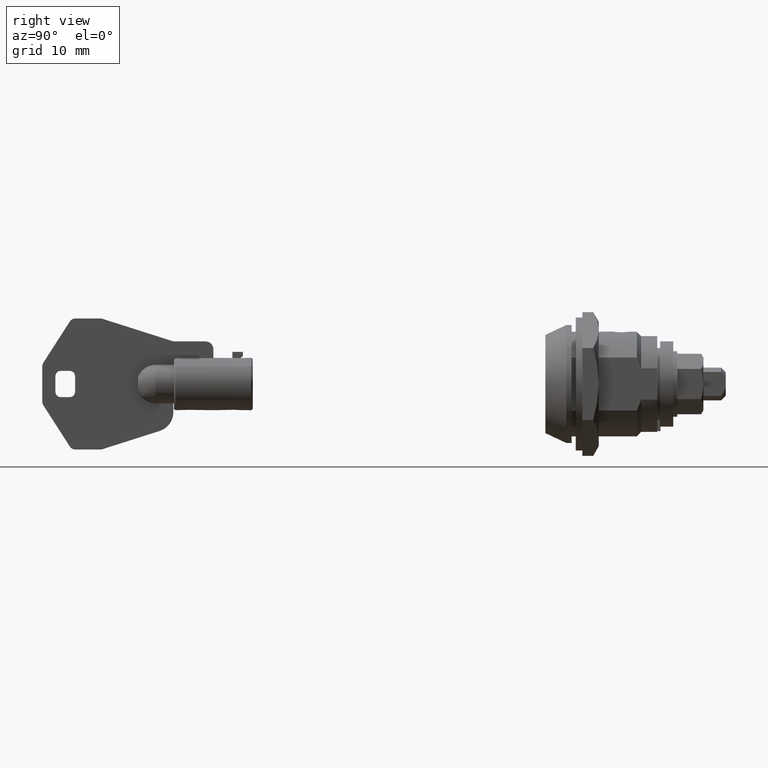
[diagram: clean part render]
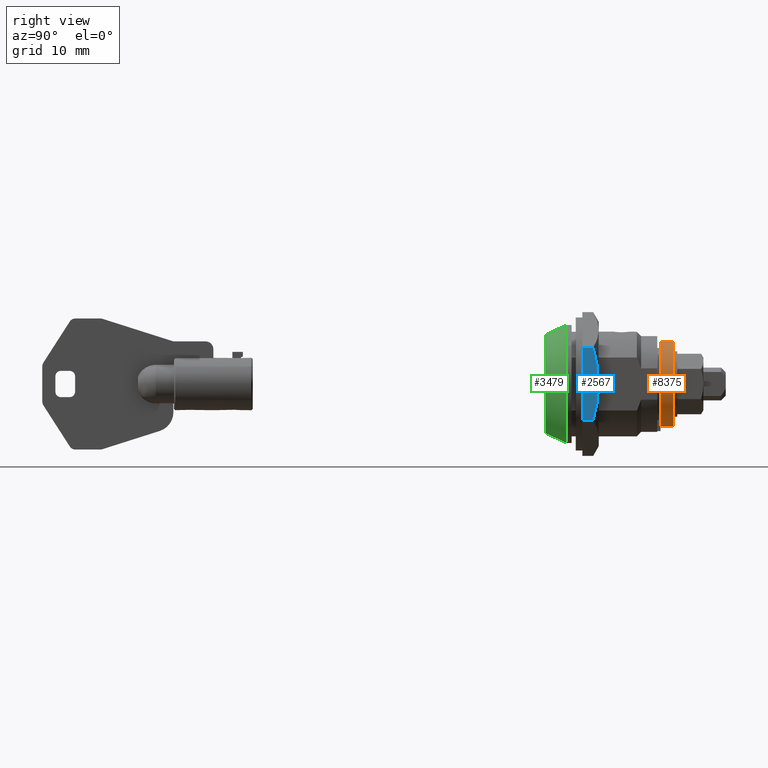
[diagram: same view with three faces highlighted in distinct colors, each labeled with its STEP entity id]
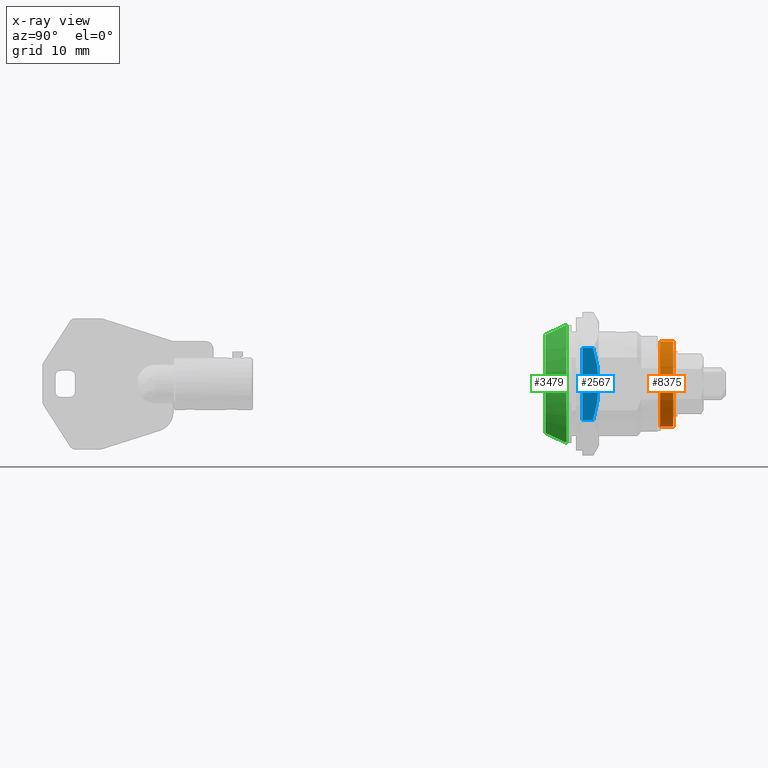
[diagram: x-ray of the same camera — body ghosted, the three highlighted faces saturated]
A machine part, right view with three faces highlighted in distinct colors.
The next image is the same camera in x-ray (body ghosted, the three faces saturated) — at least one of them is partly hidden behind the body in this view.
Their STEP definitions:

[orange] entity #8375 — the highlighted face is a freeform B-spline surface patch.
#7965=CARTESIAN_POINT('',(17.499800000000000,0.0,-6.500000000000000));
#7966=VERTEX_POINT('',#7965);
#7972=CARTESIAN_POINT('',(17.499800000000000,-6.499999999999924,-0.000000993931555));
#7973=VERTEX_POINT('',#7972);
#7974=CARTESIAN_POINT('',(17.499800000000000,-6.499999999999924,-0.000000993931555));
#7975=CARTESIAN_POINT('',(17.499799999999990,-6.500050616228368,-0.425427042327566));
#7976=CARTESIAN_POINT('',(17.499800000000040,-6.426642529057130,-1.169896962440129));
#7977=CARTESIAN_POINT('',(17.499799999999951,-6.149291729741768,-2.172008203176689));
#7978=CARTESIAN_POINT('',(17.499800000000061,-5.702088948834822,-3.198104650409914));
#7979=CARTESIAN_POINT('',(17.499799999999951,-5.011679629483419,-4.217758870349840));
#7980=CARTESIAN_POINT('',(17.499800000000050,-4.063475574829587,-5.120432628756674));
#7981=CARTESIAN_POINT('',(17.499799999999929,-3.191045881654870,-5.687978824075811));
#7982=CARTESIAN_POINT('',(17.499800000000061,-2.273625035879995,-6.115025978798578));
#7983=CARTESIAN_POINT('',(17.499799999999951,-1.249666720935796,-6.418800240558206));
#7984=CARTESIAN_POINT('',(17.499800000000029,-0.425423716752507,-6.500046548348649));
#7985=CARTESIAN_POINT('',(17.499800000000000,0.0,-6.500000000000000));
#7986=B_SPLINE_CURVE_WITH_KNOTS('',3,(#7974,#7975,#7976,#7977,#7978,#7979,#7980,#7981,#7982,#7983,#7984,#7985),.UNSPECIFIED.,.F.,.U.,(4,1,1,1,1,1,1,1,1,4),(0.000000097034606,1.276275196461892,2.233488183033234,3.110936171743759,4.626547442655870,5.902766694716857,7.019536804559957,7.737448089097114,8.933968644938119,10.210239628492021),.UNSPECIFIED.);
#7987=EDGE_CURVE('',#7973,#7966,#7986,.T.);
#7989=CARTESIAN_POINT('',(17.499800000000000,3.979971E-016,6.500000000000000));
#7990=VERTEX_POINT('',#7989);
#7991=CARTESIAN_POINT('',(17.499800000000000,3.979971E-016,6.500000000000000));
#7992=CARTESIAN_POINT('',(17.499800000000000,-0.372237101755605,6.500022234706312));
#7993=CARTESIAN_POINT('',(17.499800000000000,-1.196504315342978,6.429042349372064));
#7994=CARTESIAN_POINT('',(17.499800000000040,-2.251060215257179,6.130233380089554));
#7995=CARTESIAN_POINT('',(17.499799999999990,-3.310684022483225,5.629072978366904));
#7996=CARTESIAN_POINT('',(17.499800000000000,-4.298511773627595,4.942444478894545));
#7997=CARTESIAN_POINT('',(17.499800000000040,-5.154220962933634,4.021250485101271));
#7998=CARTESIAN_POINT('',(17.499800000000079,-5.810306308076611,2.985080447231671));
#7999=CARTESIAN_POINT('',(17.499799999999940,-6.342078995919162,1.701563344428691));
#8000=CARTESIAN_POINT('',(17.499799999999979,-6.500273560504184,0.638164895137527));
#8001=CARTESIAN_POINT('',(17.499800000000000,-6.499999999999924,-0.000000993931555));
#8002=B_SPLINE_CURVE_WITH_KNOTS('',3,(#7991,#7992,#7993,#7994,#7995,#7996,#7997,#7998,#7999,#8000,#8001),.UNSPECIFIED.,.F.,.U.,(4,1,1,1,1,1,1,1,4),(0.000000096690091,1.116721878004373,2.472792581775597,3.270479893261324,4.626547949817617,6.062319231493549,7.019537575198939,8.295823594794740,10.210240748891540),.UNSPECIFIED.);
#8003=EDGE_CURVE('',#7990,#7973,#8002,.T.);
#8107=CARTESIAN_POINT('',(19.499800000000000,3.979971E-016,6.500000000000000));
#8108=VERTEX_POINT('',#8107);
#8114=CARTESIAN_POINT('',(19.499800000000000,-6.499999999999924,-0.000000993931555));
#8115=VERTEX_POINT('',#8114);
#8116=CARTESIAN_POINT('',(19.499800000000000,3.979971E-016,6.500000000000000));
#8117=CARTESIAN_POINT('',(19.499799999999890,-0.638179550828711,6.500301669190522));
#8118=CARTESIAN_POINT('',(19.499800000000160,-1.542024655136552,6.365762743129753));
#8119=CARTESIAN_POINT('',(19.499799999999851,-2.765549020631846,5.910887066382500));
#8120=CARTESIAN_POINT('',(19.499800000000150,-3.768048386981948,5.351177984998674));
#8121=CARTESIAN_POINT('',(19.499799999999990,-4.861971842230288,4.407655328397759));
#8122=CARTESIAN_POINT('',(19.499799999999961,-5.718390493506067,3.207318339105347));
#8123=CARTESIAN_POINT('',(19.499800000000089,-6.342058718977611,1.701550351389214));
#8124=CARTESIAN_POINT('',(19.499800000000040,-6.500274137962652,0.638164959091994));
#8125=CARTESIAN_POINT('',(19.499800000000000,-6.499999999999924,-0.000000993931555));
#8126=B_SPLINE_CURVE_WITH_KNOTS('',3,(#8116,#8117,#8118,#8119,#8120,#8121,#8122,#8123,#8124,#8125),.UNSPECIFIED.,.F.,.U.,(4,1,1,1,1,1,1,4),(0.000000096690091,1.914417247518765,2.712098249098593,3.908630291325436,5.344391319401957,7.019537575198939,8.295823594794740,10.210240748891540),.UNSPECIFIED.);
#8127=EDGE_CURVE('',#8108,#8115,#8126,.T.);
#8129=CARTESIAN_POINT('',(19.499800000000000,0.0,-6.500000000000000));
#8130=VERTEX_POINT('',#8129);
#8131=CARTESIAN_POINT('',(19.499800000000000,-6.499999999999924,-0.000000993931555));
#8132=CARTESIAN_POINT('',(19.499800000000089,-6.500221220229908,-0.584981770422163));
#8133=CARTESIAN_POINT('',(19.499799999999880,-6.377083749637980,-1.488886032808410));
#8134=CARTESIAN_POINT('',(19.499800000000100,-5.936938186833933,-2.718922228395391));
#8135=CARTESIAN_POINT('',(19.499800000000029,-5.351168341657617,-3.768041324002226));
#8136=CARTESIAN_POINT('',(19.499799999999901,-4.407668112098946,-4.861982818720227));
#8137=CARTESIAN_POINT('',(19.499800000000139,-3.360102897197002,-5.609406979973004));
#8138=CARTESIAN_POINT('',(19.499799999999979,-2.273618158672722,-6.115014741328975));
#8139=CARTESIAN_POINT('',(19.499799999999961,-1.249665569355025,-6.418798384958298));
#8140=CARTESIAN_POINT('',(19.499800000000029,-0.425423900910749,-6.500046852966523));
#8141=CARTESIAN_POINT('',(19.499800000000000,0.0,-6.500000000000000));
#8142=B_SPLINE_CURVE_WITH_KNOTS('',3,(#8131,#8132,#8133,#8134,#8135,#8136,#8137,#8138,#8139,#8140,#8141),.UNSPECIFIED.,.F.,.U.,(4,1,1,1,1,1,1,1,4),(0.000000097034606,1.754872022022992,2.712097951803362,3.908629862649992,5.344390732271959,7.019536804559957,7.737448089097114,8.933968644938119,10.210239628492021),.UNSPECIFIED.);
#8143=EDGE_CURVE('',#8115,#8130,#8142,.T.);
#8337=CARTESIAN_POINT('',(19.499800000000000,0.0,-6.500000000000000));
#8338=CARTESIAN_POINT('',(17.499800000000000,0.0,-6.500000000000000));
#8339=QUASI_UNIFORM_CURVE('',1,(#8337,#8338),.UNSPECIFIED.,.F.,.U.);
#8340=EDGE_CURVE('',#8130,#7966,#8339,.T.);
#8345=CARTESIAN_POINT('',(19.549800000000008,0.056722480739425,6.499752499917111));
#8346=CARTESIAN_POINT('',(17.448550000000001,0.056722480739425,6.499752499917111));
#8347=CARTESIAN_POINT('',(19.549800000000001,-6.673968265060776,6.558490348196187));
#8348=CARTESIAN_POINT('',(17.448550000000001,-6.673968265060776,6.558490348196187));
#8349=CARTESIAN_POINT('',(19.549800000000008,-6.497772612341120,-0.170150164001178));
#8350=CARTESIAN_POINT('',(17.448550000000001,-6.497772612341120,-0.170150164001178));
#8351=CARTESIAN_POINT('',(19.549800000000001,-6.321576959621463,-6.898790676198543));
#8352=CARTESIAN_POINT('',(17.448550000000001,-6.321576959621463,-6.898790676198543));
#8353=CARTESIAN_POINT('',(19.549800000000008,0.396815506976568,-6.487876189742133));
#8354=CARTESIAN_POINT('',(17.448550000000001,0.396815506976568,-6.487876189742133));
#8362=(BOUNDED_SURFACE()B_SPLINE_SURFACE(1,2,((#8345,#8347,#8349,#8351,#8353),(#8346,#8348,#8350,#8352,#8354)),.UNSPECIFIED.,.F.,.F.,.U.)B_SPLINE_SURFACE_WITH_KNOTS((2,2),(3,2,3),(0.0,2.101250000000007),(0.0,11.036345221449711,22.072690442899429),.UNSPECIFIED.)GEOMETRIC_REPRESENTATION_ITEM()RATIONAL_B_SPLINE_SURFACE(((1.0,0.694658370458997,1.0,0.694658370458997,1.0),(1.0,0.694658370458997,1.0,0.694658370458997,1.0)))REPRESENTATION_ITEM('')SURFACE());
#8363=ORIENTED_EDGE('',*,*,#8003,.T.);
#8364=ORIENTED_EDGE('',*,*,#7987,.T.);
#8365=ORIENTED_EDGE('',*,*,#8340,.F.);
#8366=ORIENTED_EDGE('',*,*,#8143,.F.);
#8367=ORIENTED_EDGE('',*,*,#8127,.F.);
#8368=CARTESIAN_POINT('',(19.499800000000000,3.979971E-016,6.500000000000000));
#8369=CARTESIAN_POINT('',(17.499800000000000,3.979971E-016,6.500000000000000));
#8370=QUASI_UNIFORM_CURVE('',1,(#8368,#8369),.UNSPECIFIED.,.F.,.U.);
#8371=EDGE_CURVE('',#8108,#7990,#8370,.T.);
#8372=ORIENTED_EDGE('',*,*,#8371,.T.);
#8373=EDGE_LOOP('',(#8363,#8364,#8365,#8366,#8367,#8372));
#8374=FACE_OUTER_BOUND('',#8373,.T.);
#8375=ADVANCED_FACE('',(#8374),#8362,.T.);

[blue] entity #2567 — the highlighted face is a freeform B-spline surface patch.
#2070=CARTESIAN_POINT('',(8.129800000000000,-9.500000000000199,0.0));
#2071=VERTEX_POINT('',#2070);
#2072=CARTESIAN_POINT('',(7.281302179060720,-9.500000000000199,-5.484800000000000));
#2073=VERTEX_POINT('',#2072);
#2074=CARTESIAN_POINT('',(8.129800000000000,-9.500000000000199,0.0));
#2075=CARTESIAN_POINT('',(8.129799770479574,-9.500000000000199,-0.463007417338984));
#2076=CARTESIAN_POINT('',(8.110160939242165,-9.500000000000199,-0.924534624913969));
#2077=CARTESIAN_POINT('',(8.033486392258826,-9.500000000000199,-1.845320977006377));
#2078=CARTESIAN_POINT('',(7.976433966916507,-9.500000000000197,-2.304578862080391));
#2079=CARTESIAN_POINT('',(7.828764479149386,-9.500000000000199,-3.220564782913718));
#2080=CARTESIAN_POINT('',(7.738133612638914,-9.500000000000197,-3.677493664271492));
#2081=CARTESIAN_POINT('',(7.528337198083704,-9.500000000000199,-4.588377427360492));
#2082=CARTESIAN_POINT('',(7.410097486367815,-9.500000000000199,-5.038638286701766));
#2083=CARTESIAN_POINT('',(7.281302179060720,-9.500000000000199,-5.484800000000000));
#2084=B_SPLINE_CURVE_WITH_KNOTS('',3,(#2074,#2075,#2076,#2077,#2078,#2079,#2080,#2081,#2082,#2083),.UNSPECIFIED.,.F.,.U.,(4,2,2,2,4),(0.0,0.124851520171373,0.249851520171373,0.374851520171373,0.499851520171373),.UNSPECIFIED.);
#2085=EDGE_CURVE('',#2071,#2073,#2084,.T.);
#2133=CARTESIAN_POINT('',(7.281302179060720,-9.500000000000199,5.484800000000000));
#2134=VERTEX_POINT('',#2133);
#2150=CARTESIAN_POINT('',(7.281302179060726,-9.500000000000199,5.484800000000004));
#2151=CARTESIAN_POINT('',(7.537240124410197,-9.500000000000199,4.598201609245599));
#2152=CARTESIAN_POINT('',(7.750397672746485,-9.500000000000201,3.699976950693831));
#2153=CARTESIAN_POINT('',(7.936268538370702,-9.500000000000197,2.555298271688981));
#2154=CARTESIAN_POINT('',(7.985962306330861,-9.500000000000199,2.210245728552579));
#2155=CARTESIAN_POINT('',(8.025773535052545,-9.500000000000201,1.862507444849794));
#2156=CARTESIAN_POINT('',(8.050035976366493,-9.500000000000195,1.630062736195791));
#2157=CARTESIAN_POINT('',(8.061038317060001,-9.500000000000199,1.513398350932291));
#2158=CARTESIAN_POINT('',(8.110012671778261,-9.500000000000197,0.930259449764125));
#2159=CARTESIAN_POINT('',(8.129753379085379,-9.500000000000201,0.465213477259592));
#2160=CARTESIAN_POINT('',(8.129799972360370,-9.500000000000199,0.001101266540978));
#2161=CARTESIAN_POINT('',(8.129799999863140,-9.500000000000199,0.000550632403196));
#2162=CARTESIAN_POINT('',(8.129800000000000,-9.500000000000199,0.0));
#2163=B_SPLINE_CURVE_WITH_KNOTS('',3,(#2150,#2151,#2152,#2153,#2154,#2155,#2156,#2157,#2158,#2159,#2160,#2161,#2162),.UNSPECIFIED.,.F.,.U.,(4,2,1,2,2,2,4),(0.499851520202036,0.749851520202036,0.812351520202035,0.843601520202035,0.874851520202036,0.999851520202036,1.0),.UNSPECIFIED.);
#2164=EDGE_CURVE('',#2134,#2071,#2163,.T.);
#2524=CARTESIAN_POINT('',(5.629800000000000,-9.500000000000199,5.484800000000000));
#2525=VERTEX_POINT('',#2524);
#2531=CARTESIAN_POINT('',(7.281302179060720,-9.500000000000199,5.484800000000000));
#2532=CARTESIAN_POINT('',(5.629800000000000,-9.500000000000199,5.484800000000000));
#2533=QUASI_UNIFORM_CURVE('',1,(#2531,#2532),.UNSPECIFIED.,.F.,.U.);
#2534=EDGE_CURVE('',#2134,#2525,#2533,.T.);
#2545=CARTESIAN_POINT('',(5.504924849499762,-9.500000000000199,6.032731356572914));
#2546=CARTESIAN_POINT('',(5.504924849499762,-9.500000000000199,-6.032730964269447));
#2547=CARTESIAN_POINT('',(8.254674882279337,-9.500000000000199,6.032731356572914));
#2548=CARTESIAN_POINT('',(8.254674882279337,-9.500000000000199,-6.032730964269447));
#2549=B_SPLINE_SURFACE_WITH_KNOTS('',1,1,((#2545,#2547),(#2546,#2548)),.UNSPECIFIED.,.F.,.F.,.U.,(2,2),(2,2),(0.0,12.065462320842361),(0.0,2.749750032779575),.UNSPECIFIED.);
#2550=ORIENTED_EDGE('',*,*,#2164,.F.);
#2551=ORIENTED_EDGE('',*,*,#2534,.T.);
#2552=CARTESIAN_POINT('',(5.629800000000000,-9.500000000000199,-5.484800000000000));
#2553=VERTEX_POINT('',#2552);
#2554=CARTESIAN_POINT('',(5.629800000000000,-9.500000000000199,-5.484800000000000));
#2555=CARTESIAN_POINT('',(5.629800000000000,-9.500000000000199,5.484800000000000));
#2556=QUASI_UNIFORM_CURVE('',1,(#2554,#2555),.UNSPECIFIED.,.F.,.U.);
#2557=EDGE_CURVE('',#2553,#2525,#2556,.T.);
#2558=ORIENTED_EDGE('',*,*,#2557,.F.);
#2559=CARTESIAN_POINT('',(7.281302179060720,-9.500000000000199,-5.484800000000000));
#2560=CARTESIAN_POINT('',(5.629800000000000,-9.500000000000199,-5.484800000000000));
#2561=QUASI_UNIFORM_CURVE('',1,(#2559,#2560),.UNSPECIFIED.,.F.,.U.);
#2562=EDGE_CURVE('',#2073,#2553,#2561,.T.);
#2563=ORIENTED_EDGE('',*,*,#2562,.F.);
#2564=ORIENTED_EDGE('',*,*,#2085,.F.);
#2565=EDGE_LOOP('',(#2550,#2551,#2558,#2563,#2564));
#2566=FACE_OUTER_BOUND('',#2565,.T.);
#2567=ADVANCED_FACE('',(#2566),#2549,.T.);

[green] entity #3479 — the highlighted face is a freeform B-spline surface patch.
#3225=CARTESIAN_POINT('',(3.199800000000000,-6.195190862766667,-6.528369061250895));
#3226=VERTEX_POINT('',#3225);
#3232=CARTESIAN_POINT('',(3.199800000000000,0.0,-9.0));
#3233=VERTEX_POINT('',#3232);
#3234=CARTESIAN_POINT('',(3.199800000000000,0.0,-9.0));
#3235=CARTESIAN_POINT('',(3.199799999999998,-0.605007823476994,-9.000077416229098));
#3236=CARTESIAN_POINT('',(3.199800000000012,-1.637043566306726,-8.895532738808413));
#3237=CARTESIAN_POINT('',(3.199799999999986,-2.977021505259010,-8.520528500141372));
#3238=CARTESIAN_POINT('',(3.199800000000005,-4.518224590661940,-7.862964283991445));
#3239=CARTESIAN_POINT('',(3.199800000000020,-5.550081079056222,-7.141180118782528));
#3240=CARTESIAN_POINT('',(3.199800000000000,-6.195190862766667,-6.528369061250895));
#3241=B_SPLINE_CURVE_WITH_KNOTS('',3,(#3234,#3235,#3236,#3237,#3238,#3239,#3240),.UNSPECIFIED.,.F.,.U.,(4,1,1,1,4),(0.000000018186708,1.815018018907406,3.096221919275877,4.163858165894796,6.833003885502120),.UNSPECIFIED.);
#3242=EDGE_CURVE('',#3233,#3226,#3241,.T.);
#3244=CARTESIAN_POINT('',(3.199796588727286,6.635495157489233,-6.080311076421447));
#3245=VERTEX_POINT('',#3244);
#3246=CARTESIAN_POINT('',(3.199796588727286,6.635495157489233,-6.080311076421447));
#3247=CARTESIAN_POINT('',(3.199796818138343,6.189252319509362,-6.567460490415247));
#3248=CARTESIAN_POINT('',(3.199797347562665,5.159433631769474,-7.468550400465069));
#3249=CARTESIAN_POINT('',(3.199798251579109,3.400970655149082,-8.411666875679035));
#3250=CARTESIAN_POINT('',(3.199799160916836,1.632156871962402,-8.904908875444315));
#3251=CARTESIAN_POINT('',(3.199799740285048,0.505188979129339,-9.000024653843830));
#3252=CARTESIAN_POINT('',(3.199800000000000,0.0,-9.0));
#3253=B_SPLINE_CURVE_WITH_KNOTS('',3,(#3246,#3247,#3248,#3249,#3250,#3251,#3252),.UNSPECIFIED.,.F.,.U.,(4,1,1,1,4),(0.000000012321118,1.981917155582474,4.080406661474346,5.945753196486852,7.461334219376018),.UNSPECIFIED.);
#3254=EDGE_CURVE('',#3245,#3233,#3253,.T.);
#3268=CARTESIAN_POINT('',(3.199799838123491,6.449858393785506,6.276887584831243));
#3269=VERTEX_POINT('',#3268);
#3280=CARTESIAN_POINT('',(3.199800000000000,0.0,9.0));
#3281=VERTEX_POINT('',#3280);
#3282=CARTESIAN_POINT('',(3.199800000000000,0.0,9.0));
#3283=CARTESIAN_POINT('',(3.199799987780317,0.486884840695129,9.000030627673882));
#3284=CARTESIAN_POINT('',(3.199799964281225,1.423190383395431,8.923836778205232));
#3285=CARTESIAN_POINT('',(3.199799928548416,2.846939146236739,8.579674267884412));
#3286=CARTESIAN_POINT('',(3.199799895516122,4.163088376534771,8.024005858739653));
#3287=CARTESIAN_POINT('',(3.199799864404876,5.402694574818889,7.243698860063815));
#3288=CARTESIAN_POINT('',(3.199799846645262,6.110314382331471,6.625837816673694));
#3289=CARTESIAN_POINT('',(3.199799838123491,6.449858393785506,6.276887584831243));
#3290=B_SPLINE_CURVE_WITH_KNOTS('',3,(#3282,#3283,#3284,#3285,#3286,#3287,#3288,#3289),.UNSPECIFIED.,.F.,.U.,(4,1,1,1,1,4),(0.000000014358013,1.460657201585820,2.808973061191230,4.381969624434328,5.730285241020976,7.190942570442328),.UNSPECIFIED.);
#3291=EDGE_CURVE('',#3281,#3269,#3290,.T.);
#3293=CARTESIAN_POINT('',(3.199800000000000,-6.872001061266593,5.811678663954780));
#3294=VERTEX_POINT('',#3293);
#3295=CARTESIAN_POINT('',(3.199800000000000,-6.872001061266593,5.811678663954780));
#3296=CARTESIAN_POINT('',(3.199800000000005,-6.319986424843387,6.464943795830992));
#3297=CARTESIAN_POINT('',(3.199799999999992,-5.181544628346335,7.475342770679188));
#3298=CARTESIAN_POINT('',(3.199800000000004,-3.360110192093547,8.412298704195683));
#3299=CARTESIAN_POINT('',(3.199799999999997,-1.669707634603131,8.895154049954556));
#3300=CARTESIAN_POINT('',(3.199800000000002,-0.570154199313906,9.000068283317880));
#3301=CARTESIAN_POINT('',(3.199800000000000,0.0,9.0));
#3302=B_SPLINE_CURVE_WITH_KNOTS('',3,(#3295,#3296,#3297,#3298,#3299,#3300,#3301),.UNSPECIFIED.,.F.,.U.,(4,1,1,1,4),(9.621325E-009,2.565706363650624,4.520510352300205,6.108811453575565,7.819274754604971),.UNSPECIFIED.);
#3303=EDGE_CURVE('',#3294,#3281,#3302,.T.);
#3339=CARTESIAN_POINT('',(3.199800000000000,-8.999999999999842,0.000001685419672));
#3340=VERTEX_POINT('',#3339);
#3341=CARTESIAN_POINT('',(3.199800000000000,-8.999999999999842,0.000001685419672));
#3342=CARTESIAN_POINT('',(3.199800000000001,-9.000017976789486,0.460684487009155));
#3343=CARTESIAN_POINT('',(3.199799999999997,-8.921534361027256,1.480774554620022));
#3344=CARTESIAN_POINT('',(3.199800000000001,-8.517929935396372,3.083194630195705));
#3345=CARTESIAN_POINT('',(3.199800000000005,-7.806950170284254,4.576867109696612));
#3346=CARTESIAN_POINT('',(3.199799999999995,-7.169490011552811,5.459928461104440));
#3347=CARTESIAN_POINT('',(3.199800000000000,-6.872001061266593,5.811678663954780));
#3348=B_SPLINE_CURVE_WITH_KNOTS('',3,(#3341,#3342,#3343,#3344,#3345,#3346,#3347),.UNSPECIFIED.,.F.,.U.,(4,1,1,1,4),(0.000000017823106,1.382058044014185,3.060285247027455,4.935924506396503,6.317982532589535),.UNSPECIFIED.);
#3349=EDGE_CURVE('',#3340,#3294,#3348,.T.);
#3351=CARTESIAN_POINT('',(3.199800000000000,-6.195190862766667,-6.528369061250895));
#3352=CARTESIAN_POINT('',(3.199799999999998,-6.553948628314641,-6.187959609810477));
#3353=CARTESIAN_POINT('',(3.199800000000004,-7.240585887412737,-5.419342183574455));
#3354=CARTESIAN_POINT('',(3.199799999999994,-8.029238408623638,-4.155742161986962));
#3355=CARTESIAN_POINT('',(3.199800000000006,-8.613829437161245,-2.746013625891491));
#3356=CARTESIAN_POINT('',(3.199799999999984,-8.933582815566117,-1.369545006963085));
#3357=CARTESIAN_POINT('',(3.199800000000014,-9.000011634999702,-0.418467183528857));
#3358=CARTESIAN_POINT('',(3.199800000000000,-8.999999999999842,0.000001685419672));
#3359=B_SPLINE_CURVE_WITH_KNOTS('',3,(#3351,#3352,#3353,#3354,#3355,#3356,#3357,#3358),.UNSPECIFIED.,.F.,.U.,(4,1,1,1,1,4),(0.000000015514782,1.483673473098166,3.081497197679493,4.451017878129589,6.048835396063951,7.304253410886351),.UNSPECIFIED.);
#3360=EDGE_CURVE('',#3226,#3340,#3359,.T.);
#3376=CARTESIAN_POINT('',(-0.079995000000000,5.348007880225783,5.204586243213085));
#3377=CARTESIAN_POINT('',(-0.079995000000000,5.199054857986509,5.357643931085559));
#3378=CARTESIAN_POINT('',(-0.079995000000000,5.041591924331862,5.501932125945548));
#3379=CARTESIAN_POINT('',(-0.079995000000000,-0.460340201613686,10.543524050277410));
#3380=CARTESIAN_POINT('',(-0.079995000000000,-5.501932125945548,5.041591924331862));
#3381=CARTESIAN_POINT('',(-0.079995000000000,-10.543524050277410,-0.460340201613686));
#3382=CARTESIAN_POINT('',(-0.079995000000000,-5.041591924331862,-5.501932125945548));
#3383=CARTESIAN_POINT('',(-0.079995000000000,0.460340201613686,-10.543524050277410));
#3384=CARTESIAN_POINT('',(-0.079995000000000,5.501932125945548,-5.041591924331862));
#3385=CARTESIAN_POINT('',(3.281794875000001,6.477405021765929,6.303695473720777));
#3386=CARTESIAN_POINT('',(3.281794875000001,6.296995965558788,6.489076022562299));
#3387=CARTESIAN_POINT('',(3.281794875000000,6.106279867146170,6.663835128924756));
#3388=CARTESIAN_POINT('',(3.281794874999999,-0.557555261778586,12.770114996070925));
#3389=CARTESIAN_POINT('',(3.281794875000000,-6.663835128924756,6.106279867146170));
#3390=CARTESIAN_POINT('',(3.281794874999999,-12.770114996070925,-0.557555261778586));
#3391=CARTESIAN_POINT('',(3.281794875000000,-6.106279867146170,-6.663835128924756));
#3392=CARTESIAN_POINT('',(3.281794874999999,0.557555261778586,-12.770114996070925));
#3393=CARTESIAN_POINT('',(3.281794875000000,6.663835128924756,-6.106279867146170));
#3401=(BOUNDED_SURFACE()B_SPLINE_SURFACE(2,1,((#3376,#3385),(#3377,#3386),(#3378,#3387),(#3379,#3388),(#3380,#3389),(#3381,#3390),(#3382,#3391),(#3383,#3392),(#3384,#3393)),.UNSPECIFIED.,.F.,.F.,.U.)B_SPLINE_SURFACE_WITH_KNOTS((3,2,2,2,3),(2,2),(0.0,0.599014943225852,15.574388523872150,30.549762104518440,45.525135685164720),(0.0,3.712843946028272),.UNSPECIFIED.)GEOMETRIC_REPRESENTATION_ITEM()RATIONAL_B_SPLINE_SURFACE(((0.977505800795127,0.977505800795127),(0.988284271247462,0.988284271247462),(1.0,1.0),(0.707106781186548,0.707106781186548),(1.0,1.0),(0.707106781186548,0.707106781186548),(1.0,1.0),(0.707106781186548,0.707106781186548),(1.0,1.0)))REPRESENTATION_ITEM('')SURFACE());
#3402=ORIENTED_EDGE('',*,*,#3291,.T.);
#3403=CARTESIAN_POINT('',(-0.000000085441742,5.374882100453605,5.230739756825190));
#3404=VERTEX_POINT('',#3403);
#3405=CARTESIAN_POINT('',(-0.000000085441742,5.374882100453605,5.230739756825190));
#3406=CARTESIAN_POINT('',(3.199799838123491,6.449858393785506,6.276887584831243));
#3407=QUASI_UNIFORM_CURVE('',1,(#3405,#3406),.UNSPECIFIED.,.F.,.U.);
#3408=EDGE_CURVE('',#3404,#3269,#3407,.T.);
#3409=ORIENTED_EDGE('',*,*,#3408,.F.);
#3410=CARTESIAN_POINT('',(0.0,0.0,7.500000000000000));
#3411=VERTEX_POINT('',#3410);
#3412=CARTESIAN_POINT('',(0.0,0.0,7.500000000000000));
#3413=CARTESIAN_POINT('',(-8.434475E-009,0.530587376547696,7.500093306336281));
#3414=CARTESIAN_POINT('',(-0.000000022821840,1.435653060119178,7.403522898235855));
#3415=CARTESIAN_POINT('',(-0.000000043339855,2.726379473530311,7.022384628638660));
#3416=CARTESIAN_POINT('',(-0.000000064423403,4.052681825330905,6.382689165830320));
#3417=CARTESIAN_POINT('',(-0.000000078177420,4.917905554608581,5.700610317487552));
#3418=CARTESIAN_POINT('',(-0.000000085441742,5.374882100453605,5.230739756825190));
#3419=B_SPLINE_CURVE_WITH_KNOTS('',3,(#3412,#3413,#3414,#3415,#3416,#3417,#3418),.UNSPECIFIED.,.F.,.U.,(4,1,1,1,4),(0.000000023702667,1.591745777649717,2.715347587254189,4.026177377958746,5.992452200920396),.UNSPECIFIED.);
#3420=EDGE_CURVE('',#3411,#3404,#3419,.T.);
#3421=ORIENTED_EDGE('',*,*,#3420,.F.);
#3422=CARTESIAN_POINT('',(0.0,-7.499999999999946,0.000000907479838));
#3423=VERTEX_POINT('',#3422);
#3424=CARTESIAN_POINT('',(0.0,-7.499999999999946,0.000000907479838));
#3425=CARTESIAN_POINT('',(0.0,-7.500040909963945,0.460196335229229));
#3426=CARTESIAN_POINT('',(0.0,-7.423521207879464,1.288530390547608));
#3427=CARTESIAN_POINT('',(0.0,-7.109873094784462,2.478394519780416));
#3428=CARTESIAN_POINT('',(0.0,-6.544277517155627,3.776315138436403));
#3429=CARTESIAN_POINT('',(0.0,-5.609958128699149,5.085779188196347));
#3430=CARTESIAN_POINT('',(0.0,-4.417844138939452,6.113910518102686));
#3431=CARTESIAN_POINT('',(0.0,-3.115513112078590,6.872987033294736));
#3432=CARTESIAN_POINT('',(0.0,-1.687364730732640,7.374102828863133));
#3433=CARTESIAN_POINT('',(0.0,-0.552235120740674,7.500088594287443));
#3434=CARTESIAN_POINT('',(0.0,0.0,7.500000000000000));
#3435=B_SPLINE_CURVE_WITH_KNOTS('',3,(#3424,#3425,#3426,#3427,#3428,#3429,#3430,#3431,#3432,#3433,#3434),.UNSPECIFIED.,.F.,.U.,(4,1,1,1,1,1,1,1,4),(0.000000071620079,1.380590362690722,2.485057898482156,3.681585578019947,5.614443789878998,7.271108675325365,8.375582316946616,10.124342298233691,11.781045860091870),.UNSPECIFIED.);
#3436=EDGE_CURVE('',#3423,#3411,#3435,.T.);
#3437=ORIENTED_EDGE('',*,*,#3436,.F.);
#3438=CARTESIAN_POINT('',(0.0,0.0,-7.500000000000000));
#3439=VERTEX_POINT('',#3438);
#3440=CARTESIAN_POINT('',(0.0,0.0,-7.500000000000000));
#3441=CARTESIAN_POINT('',(0.0,-0.582914537861173,-7.500114540307789));
#3442=CARTESIAN_POINT('',(0.0,-1.810077328070002,-7.356264954276630));
#3443=CARTESIAN_POINT('',(0.0,-3.401244041976450,-6.753796737725565));
#3444=CARTESIAN_POINT('',(0.0,-4.635801635078382,-5.939534964662294));
#3445=CARTESIAN_POINT('',(0.0,-5.604981588456239,-5.039262919363240));
#3446=CARTESIAN_POINT('',(0.0,-6.332968785137326,-4.082467183415490));
#3447=CARTESIAN_POINT('',(0.0,-6.920426060072250,-2.966934822807831));
#3448=CARTESIAN_POINT('',(0.0,-7.371255082857968,-1.656630029727687));
#3449=CARTESIAN_POINT('',(0.0,-7.500149237767837,-0.613599960049212));
#3450=CARTESIAN_POINT('',(0.0,-7.499999999999946,0.000000907479838));
#3451=B_SPLINE_CURVE_WITH_KNOTS('',3,(#3440,#3441,#3442,#3443,#3444,#3445,#3446,#3447,#3448,#3449,#3450),.UNSPECIFIED.,.F.,.U.,(4,1,1,1,1,1,1,1,4),(0.000000071296686,1.748738523979359,3.681585897514429,5.062195702551934,6.166604815529416,7.639260404901982,8.651707165409553,9.940274777202379,11.781046883039590),.UNSPECIFIED.);
#3452=EDGE_CURVE('',#3439,#3423,#3451,.T.);
#3453=ORIENTED_EDGE('',*,*,#3452,.F.);
#3454=CARTESIAN_POINT('',(0.000000086859496,5.529580222725956,-5.066926737313868));
#3455=VERTEX_POINT('',#3454);
#3456=CARTESIAN_POINT('',(0.000000086859496,5.529580222725956,-5.066926737313868));
#3457=CARTESIAN_POINT('',(0.000000081018100,5.157709866697757,-5.472885997012818));
#3458=CARTESIAN_POINT('',(0.000000069848024,4.446609355892382,-6.095024591268260));
#3459=CARTESIAN_POINT('',(0.000000052689654,3.354286870433909,-6.736597227132553));
#3460=CARTESIAN_POINT('',(0.000000037593584,2.393252888747303,-7.130067966309678));
#3461=CARTESIAN_POINT('',(0.000000020347396,1.295339764521334,-7.421054959823935));
#3462=CARTESIAN_POINT('',(7.630484E-009,0.485765789810888,-7.500060936292277));
#3463=CARTESIAN_POINT('',(0.0,0.0,-7.500000000000000));
#3464=B_SPLINE_CURVE_WITH_KNOTS('',3,(#3456,#3457,#3458,#3459,#3460,#3461,#3462,#3463),.UNSPECIFIED.,.F.,.U.,(4,1,1,1,1,4),(0.000000023410145,1.651599039970344,2.817449590096028,3.788955350378604,4.760488547951383,6.217779039372156),.UNSPECIFIED.);
#3465=EDGE_CURVE('',#3455,#3439,#3464,.T.);
#3466=ORIENTED_EDGE('',*,*,#3465,.F.);
#3467=CARTESIAN_POINT('',(0.000000086859496,5.529580222725956,-5.066926737313868));
#3468=CARTESIAN_POINT('',(3.199796588727286,6.635495157489233,-6.080311076421447));
#3469=QUASI_UNIFORM_CURVE('',1,(#3467,#3468),.UNSPECIFIED.,.F.,.U.);
#3470=EDGE_CURVE('',#3455,#3245,#3469,.T.);
#3471=ORIENTED_EDGE('',*,*,#3470,.T.);
#3472=ORIENTED_EDGE('',*,*,#3254,.T.);
#3473=ORIENTED_EDGE('',*,*,#3242,.T.);
#3474=ORIENTED_EDGE('',*,*,#3360,.T.);
#3475=ORIENTED_EDGE('',*,*,#3349,.T.);
#3476=ORIENTED_EDGE('',*,*,#3303,.T.);
#3477=EDGE_LOOP('',(#3402,#3409,#3421,#3437,#3453,#3466,#3471,#3472,#3473,#3474,#3475,#3476));
#3478=FACE_OUTER_BOUND('',#3477,.T.);
#3479=ADVANCED_FACE('',(#3478),#3401,.T.);